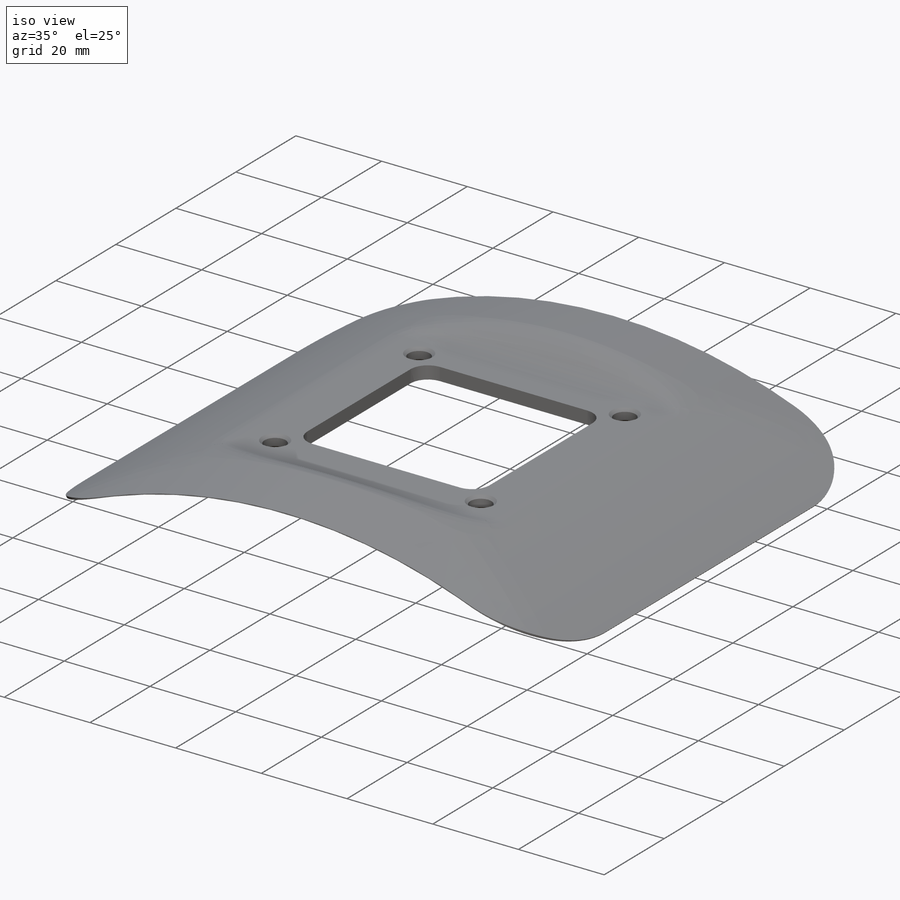
[diagram: iso view]
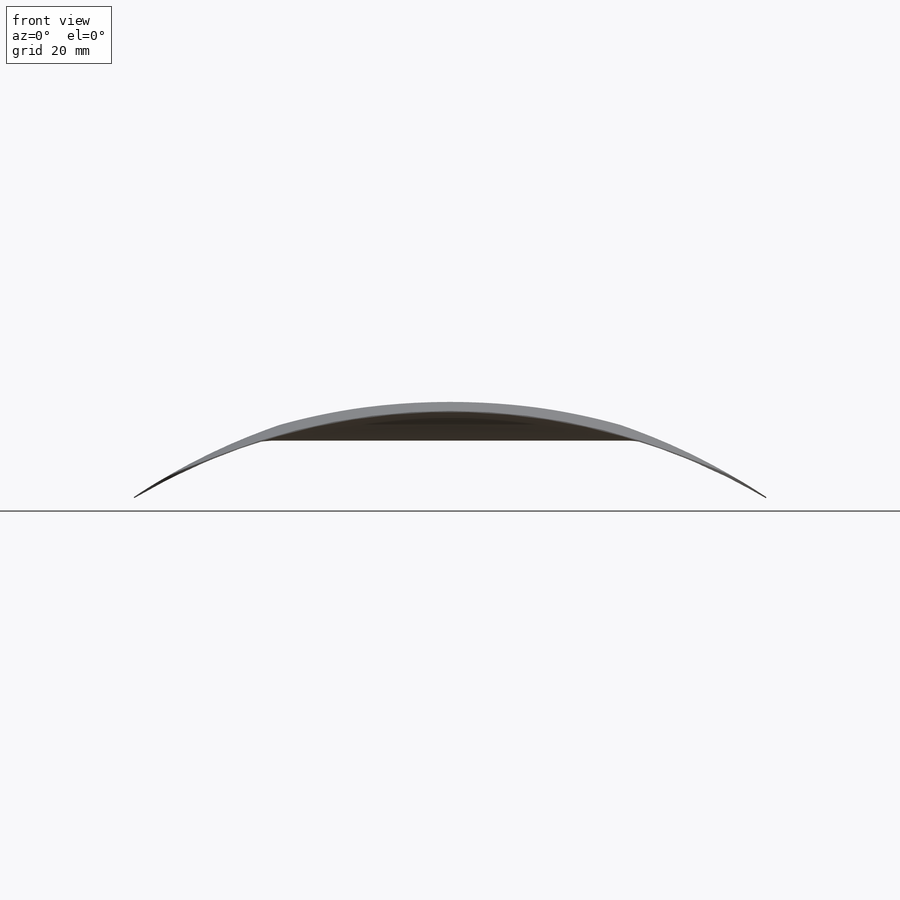
[diagram: front view]
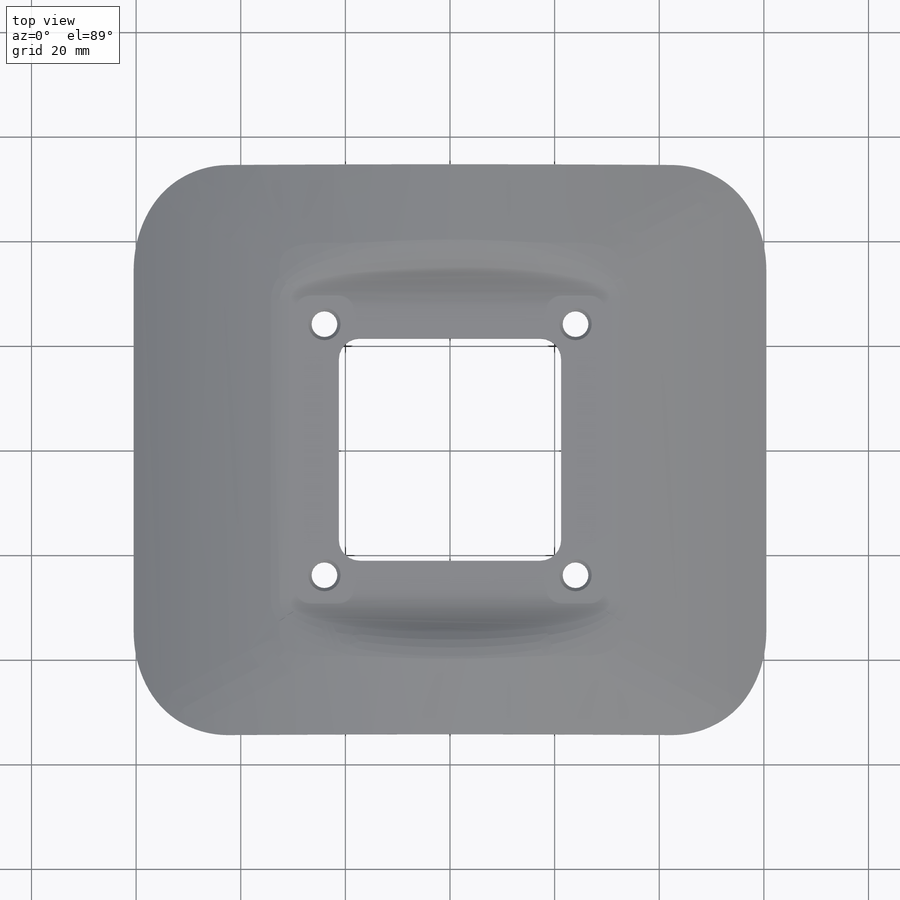
[diagram: top view]
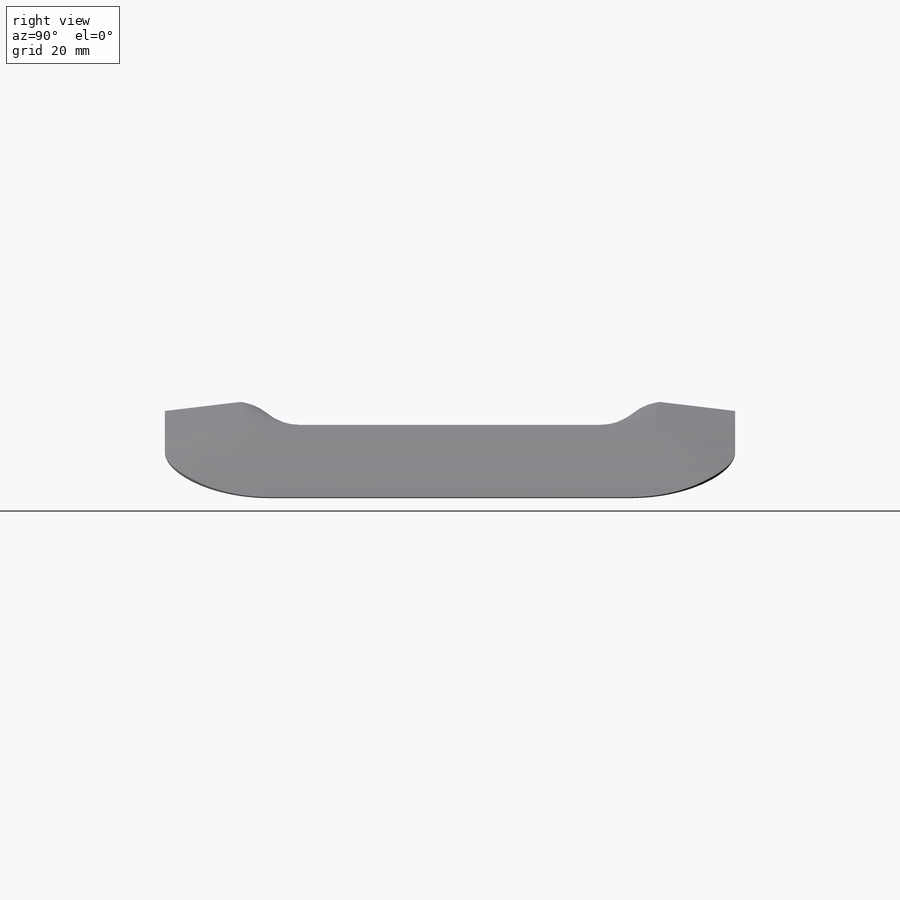
[diagram: right view]
SOLIDWORKS PART (.sldprt)
format: sldprt  version: not decoded by parser v0  size: 731,648 bytes
history: native  units: mm
features: sketch x15, fillet x7, cut_extrude x4, mirror x2, material x1, revolve x1, extrude x1, boolean_combine x1, hole x1 (+11 scaffold rows collapsed)
feature tree (44):
  scaffold x11  (default folders/planes/origin — collapsed)
  material  "Material <not specified>"
  sketch  "Sketch1"  dims[D1=237.9mm]
  sketch  "Sketch2"  dims[D1=2.0mm D2=0.2mm D3=15.0mm D4=39.5mm]
  revolve  "Revolve1"  Angle=61deg
  sketch  "Sketch3"  dims[c1.D1=68.212mm c1.D2=~113.485817mm c2.D1=~113.485817mm c2.D2=~71.276132mm]
  extrude  "Extrude1"  Depth=39.5mm
  sketch  "Sketch4"  dims[c1.D1=~17.872553mm c2.D1=45.0deg c2.D2=2.0mm]
  cut_extrude  "Extrude2"  [1 undecoded]
  boolean_combine  "Combine1"
  sketch  "Sketch5"  dims[D1=3.0mm]
  cut_extrude  "Extrude3"  Depth=3mm
  sketch  "Sketch6"  dims[D1=0.2mm]
  cut_extrude  "Extrude4"  [1 undecoded]
  mirror  "Mirror1"
  fillet  "Fillet1"  Radius=10mm
  fillet  "Fillet2"  Radius=10mm
  fillet  "Fillet7"  Radius=10mm
  fillet  "Fillet3"  Radius=10mm
  fillet  "Fillet4"  Radius=20mm
  fillet  "Fillet5"  Radius=50mm
  mirror  "Mirror3"
  sketch  "Sketch7"  dims[D1=42.5mm]
  cut_extrude  "Extrude5"  [1 undecoded]
  fillet  "Fillet6"  Radius=4mm
  sketch  "Sketch8"  dims[D1=48.0mm]
  hole  "#8 Clearance Hole1"  Diameter=4.9149mm Depth=3mm
  sketch  "3DSketch1"
  sketch  "Sketch9"  dims[hole-wizard template sketch: 51 standard entries collapsed; hole parameters kept: c15.Far C'Sink Dia.=6.1849mm c15.D6=~9.919017mm c15.Far C'Sink Angle=90.0deg]
  sketch  "Vac chuck locating tab"  dims[c1.D1=4.0mm c1.D2=4.0mm c1.D3=4.0mm c1.D4=4.0mm c2.D1=2.0mm c2.D2=2.0mm c2.D3=2.0mm c2.D4=2.0mm c3.D1=25.0mm]
  sketch  "PLY 6,7,8"  dims[D1=5.0mm]
  sketch  "Ply 4,5"  dims[D1=10.0mm]
  sketch  "Ply 2,3"  dims[D2=4.0mm D3=4.0mm D4=4.0mm D5=4.0mm D1=20.0mm]
  sketch  "Ply 1"  dims[c1.D2=4.0mm c1.D3=4.0mm c1.D4=4.0mm c1.D5=4.0mm c1.D1=4.0mm c2.D2=4.0mm c2.D3=4.0mm c2.D4=4.0mm c2.D6=41.0mm c2.D1=30.0mm]
decode coverage: 25 of 32 modeling features carry decoded parameters
note: ~ marks probable driven/reference dimensions
note: 3 parameter values undecoded
summary: no parameter record found for 3 features
note: suppression state not decoded; provenance and decode notes live in map.json
